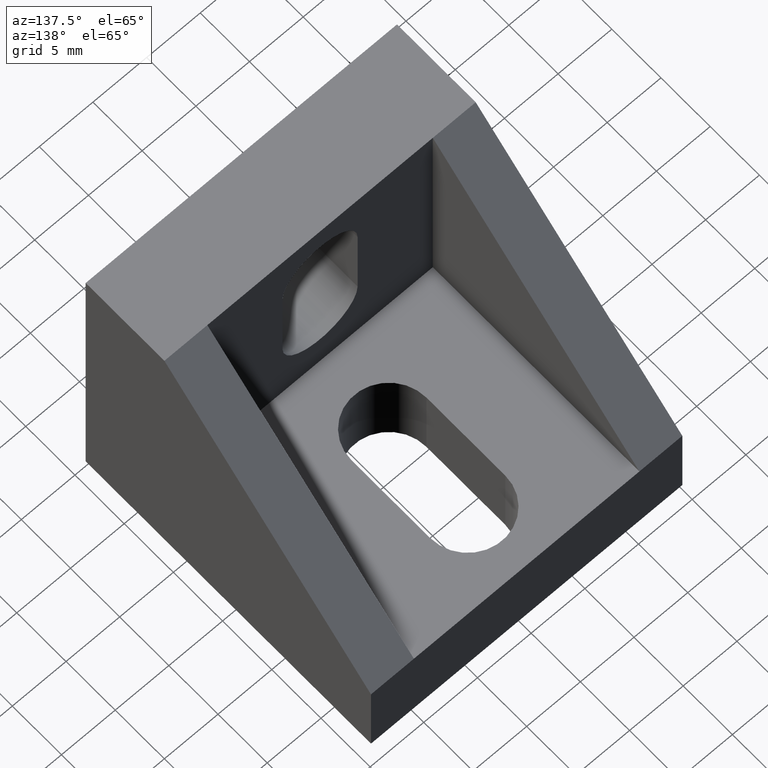
[diagram: clean part render]
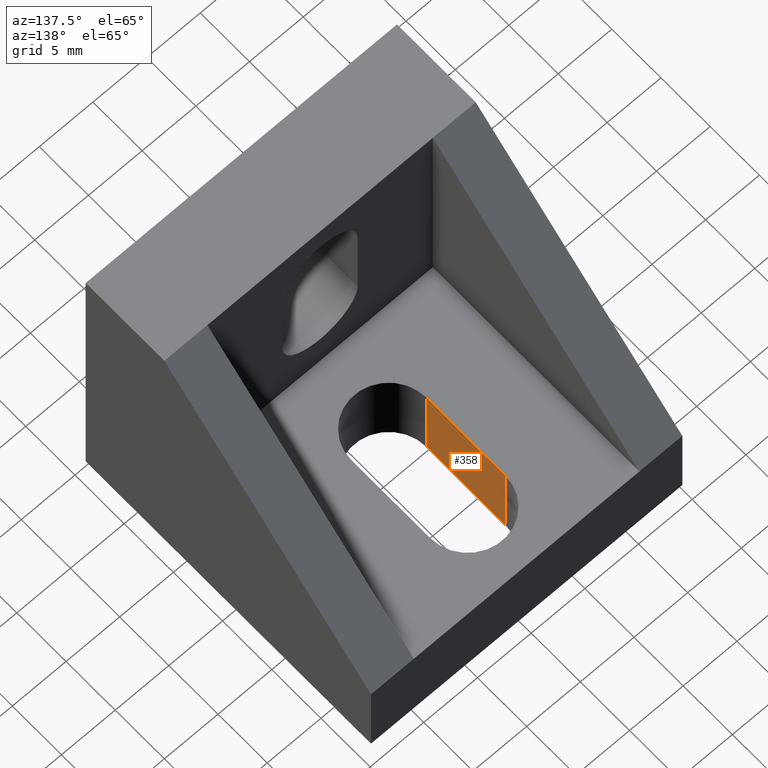
[diagram: same view with one face highlighted and labeled with its STEP entity id]
A machine part, auxiliary view. The second image highlights one B-rep face of the part: STEP entity #358.
In plain terms, the highlighted planar face has unit normal (-1, -0, -0).
Its self-contained STEP definition (entity closure, byte-faithful):
#19=PLANE('',#382);
#36=FACE_OUTER_BOUND('',#56,.T.);
#56=EDGE_LOOP('',(#257,#258,#259,#260));
#80=LINE('',#516,#122);
#81=LINE('',#519,#123);
#82=LINE('',#521,#124);
#83=LINE('',#522,#125);
#122=VECTOR('',#416,8.);
#123=VECTOR('',#419,8.);
#124=VECTOR('',#420,8.);
#125=VECTOR('',#421,8.);
#172=VERTEX_POINT('',#510);
#174=VERTEX_POINT('',#514);
#175=VERTEX_POINT('',#518);
#176=VERTEX_POINT('',#520);
#206=EDGE_CURVE('',#174,#172,#80,.T.);
#207=EDGE_CURVE('',#172,#175,#81,.T.);
#208=EDGE_CURVE('',#176,#174,#82,.T.);
#209=EDGE_CURVE('',#176,#175,#83,.T.);
#257=ORIENTED_EDGE('',*,*,#207,.F.);
#258=ORIENTED_EDGE('',*,*,#206,.F.);
#259=ORIENTED_EDGE('',*,*,#208,.F.);
#260=ORIENTED_EDGE('',*,*,#209,.T.);
#358=ADVANCED_FACE('',(#36),#19,.F.);
#382=AXIS2_PLACEMENT_3D('',#517,#417,#418);
#416=DIRECTION('',(0.,-5.1044736764375E-17,1.));
#417=DIRECTION('center_axis',(-1.,-5.55111512312578E-16,-2.83355210208697E-32));
#418=DIRECTION('ref_axis',(5.32907051820075E-16,-1.,-6.12323399573676E-17));
#419=DIRECTION('',(-5.55111512312578E-16,1.,0.));
#420=DIRECTION('',(5.55111512312578E-16,-1.,-6.12323399573676E-17));
#421=DIRECTION('',(0.,-5.1044736764375E-17,1.));
#510=CARTESIAN_POINT('',(11.,15.,8.));
#514=CARTESIAN_POINT('',(11.,15.,9.18485099360515E-16));
#516=CARTESIAN_POINT('',(11.,15.,9.18485099360515E-16));
#517=CARTESIAN_POINT('Origin',(11.,23.,1.40834381901946E-15));
#518=CARTESIAN_POINT('',(11.,23.,8.));
#519=CARTESIAN_POINT('',(11.,20.75,8.));
#520=CARTESIAN_POINT('',(11.,23.,1.40834381901946E-15));
#521=CARTESIAN_POINT('',(11.,11.5,7.04171909509728E-16));
#522=CARTESIAN_POINT('',(11.,23.,1.40834381901946E-15));